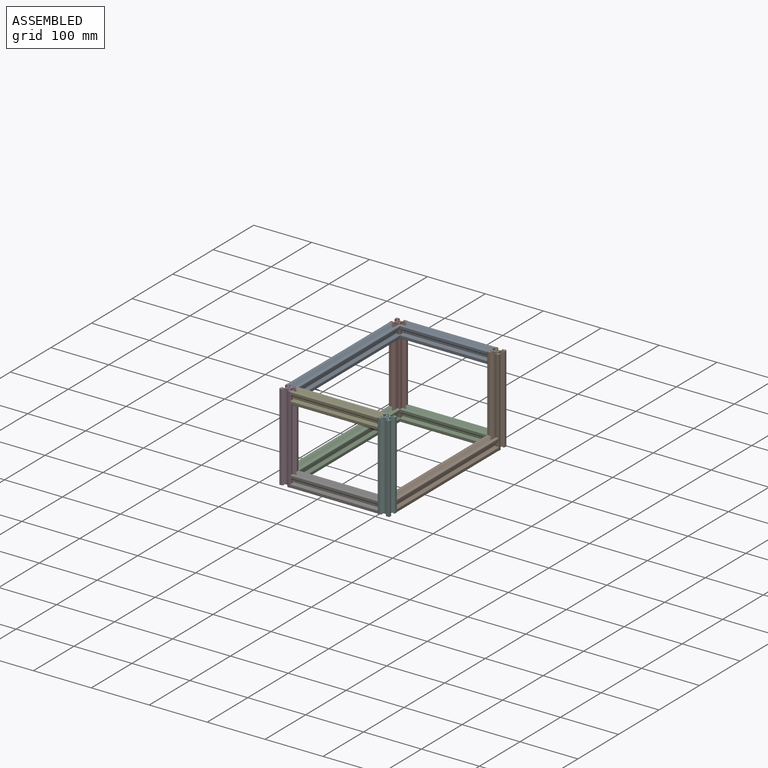
[diagram: assembled view]
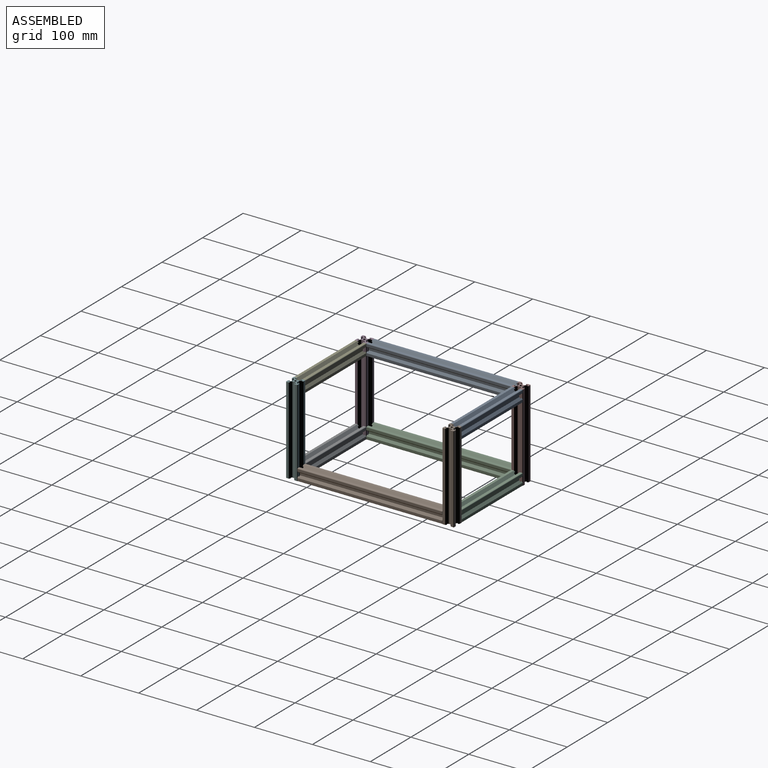
[diagram: assembled view, second angle]
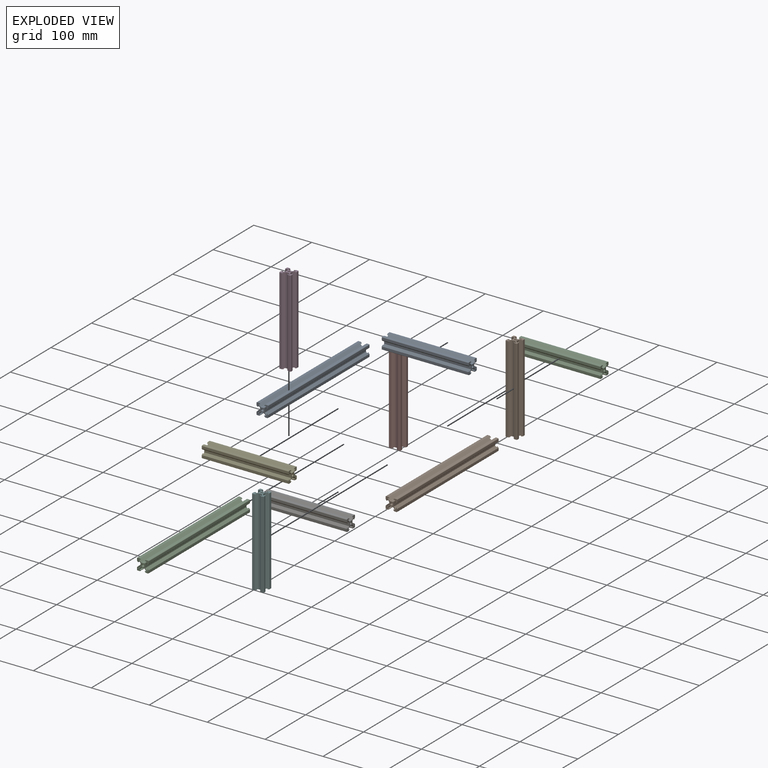
[diagram: exploded view]
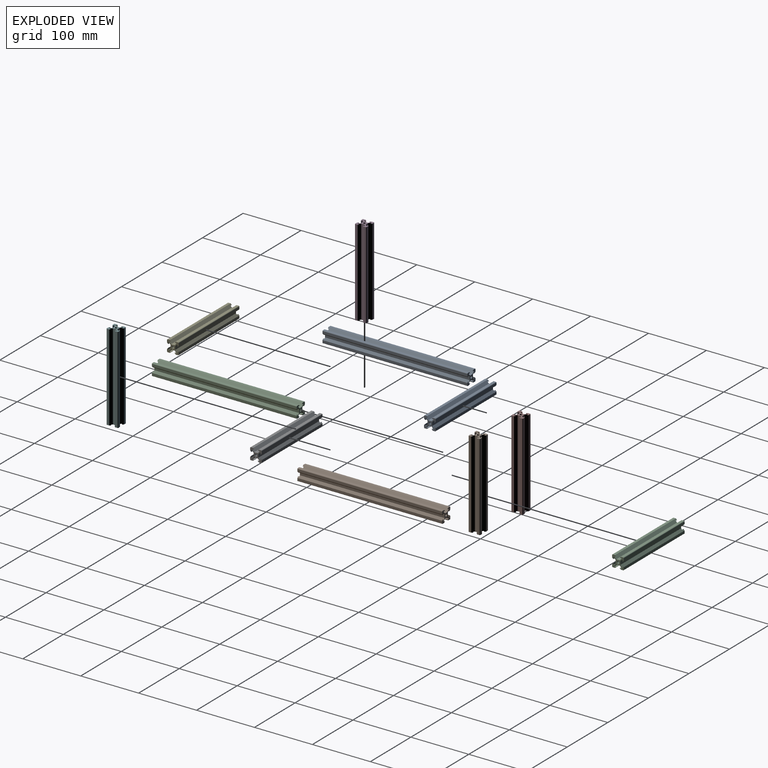
[diagram: exploded view, second angle]
FCSTD DOCUMENT  (FreeCAD 1.0R39285 (Git))
Label: assembly-frame
License: All rights reserved
objects: App::Link×11, App::FeaturePython×11, Part::Feature×2, Assembly::JointGroup×1, Assembly::AssemblyObject×1
note: 2 computed .brp shape members not serialized (recipe doc carries the construction recipe); baked Part::Feature solids carry a one-line shape summary decoded from their .brp

FEATURE [Part::Feature] Part__Feature  label="2020_150mm v2"
  shape: bbox 20 x 20 x 150 mm, 51 faces (baked)
FEATURE [App::Link] _020_150mm_v2  label="2020_150mm_001"
  LinkedObject = -> Part__Feature
FEATURE [App::Link] _020_150mm_v003  label="2020_150mm_002"
  LinkPlacement = pos=(160,1.8e-15,140) rot=(0,-1,0;1.5708rad)
  LinkedObject = -> Part__Feature
  Placement = pos=(160,1.8e-15,140) rot=(0,-1,0;1.5708rad)
FEATURE [App::FeaturePython] GroundedJoint  # Assembly grounded joint (typed FeaturePython)
  ObjectToGround = -> _020_150mm_v2
FEATURE [App::FeaturePython] Joint  label="Fixed"  # Assembly joint (typed FeaturePython)
  Activated = true
  AngleMax = 0
  AngleMin = 0
  Detach1 = false
  Detach2 = false
  Distance = 0
  Distance2 = 0
  EnableAngleMax = false
  EnableAngleMin = false
  EnableLengthMax = false
  EnableLengthMin = false
  JointType = 0 (Fixed)
  LengthMax = 0
  LengthMin = 0
  Offset2 = pos=(0,0,0) rot=(0,0,1;1.5708rad)
  Placement1 = pos=(10,-7,150) rot=(-0.57735,-0.57735,0.57735;4.18879rad)
  Placement2 = pos=(10,-7,150) rot=(-1,0,0;4.71239rad)
  Reference1 = -> Assembly [_020_150mm_v003.Edge4,_020_150mm_v003.Edge4]
  Reference2 = -> Assembly [_020_150mm_v2.Edge4,_020_150mm_v2.Edge4]
FEATURE [App::Link] _020_150mm_v004  label="2020_150mm_003"
  LinkPlacement = pos=(170,3.64e-14,-2.49e-14) rot=(0,0,1;0rad)
  LinkedObject = -> Part__Feature
  Placement = pos=(170,3.64e-14,-2.49e-14) rot=(0,0,1;0rad)
FEATURE [App::FeaturePython] Joint001  label="Fixed001"  # Assembly joint (typed FeaturePython)
  Activated = true
  AngleMax = 0
  AngleMin = 0
  Detach1 = false
  Detach2 = false
  Distance = 0
  Distance2 = 0
  EnableAngleMax = false
  EnableAngleMin = false
  EnableLengthMax = false
  EnableLengthMin = false
  JointType = 0 (Fixed)
  LengthMax = 0
  LengthMin = 0
  Offset2 = pos=(0,0,0) rot=(0,0,1;1.5708rad)
  Placement1 = pos=(-10,-7,150) rot=(0.57735,0.57735,0.57735;4.18879rad)
  Placement2 = pos=(10,-7,0) rot=(-1,0,0;4.71239rad)
  Reference1 = -> Assembly [_020_150mm_v004.Edge38,_020_150mm_v004.Edge38]
  Reference2 = -> Assembly [_020_150mm_v003.Edge92,_020_150mm_v003.Edge92]
FEATURE [App::Link] _020_150mm_v005  label="2020_150mm_004"
  LinkPlacement = pos=(160,2.7e-15,10) rot=(0,1,0;4.71239rad)
  LinkedObject = -> Part__Feature
  Placement = pos=(160,2.7e-15,10) rot=(0,1,0;4.71239rad)
FEATURE [App::FeaturePython] Joint002  label="Fixed002"  # Assembly joint (typed FeaturePython)
  Activated = true
  AngleMax = 0
  AngleMin = 0
  Detach1 = false
  Detach2 = false
  Distance = 0
  Distance2 = 0
  EnableAngleMax = false
  EnableAngleMin = false
  EnableLengthMax = false
  EnableLengthMin = false
  JointType = 0 (Fixed)
  LengthMax = 0
  LengthMin = 0
  Offset2 = pos=(0,0,0) rot=(0,0,-1;1.5708rad)
  Placement1 = pos=(-10,-7,150) rot=(0.57735,0.57735,0.57735;4.18879rad)
  Placement2 = pos=(10,-7,0) rot=(0,-0.707107,0.707107;3.14159rad)
  Reference1 = -> Assembly [_020_150mm_v005.Edge38,_020_150mm_v005.Edge38]
  Reference2 = -> Assembly [_020_150mm_v2.Edge92,_020_150mm_v2.Edge92]
FEATURE [Part::Feature] Part__Feature001  label="2020_250mm v2"
  shape: bbox 20 x 20 x 250 mm, 51 faces (baked)
FEATURE [App::Link] _020_250mm_v2  label="2020_250mm_001"
  LinkPlacement = pos=(-1.101e-13,-260,10) rot=(-1,0,0;1.5708rad)
  LinkedObject = -> Part__Feature001
  Placement = pos=(-1.101e-13,-260,10) rot=(-1,0,0;1.5708rad)
FEATURE [App::FeaturePython] Joint003  label="Fixed003"  # Assembly joint (typed FeaturePython)
  Activated = true
  AngleMax = 0
  AngleMin = 0
  Detach1 = false
  Detach2 = false
  Distance = 0
  Distance2 = 0
  EnableAngleMax = false
  EnableAngleMin = false
  EnableLengthMax = false
  EnableLengthMin = false
  JointType = 0 (Fixed)
  LengthMax = 0
  LengthMin = 0
  Offset2 = pos=(0,0,-2) rot=(0,0,1;1.5708rad)
  Placement1 = pos=(9,10,250) rot=(-0.707107,0,0.707107;3.14159rad)
  Placement2 = pos=(9,-10,0) rot=(-0.57735,0.57735,0.57735;4.18879rad)
  Reference1 = -> Assembly [_020_250mm_v2.Edge16,_020_250mm_v2.Vertex16]
  Reference2 = -> Assembly [_020_150mm_v2.Edge96,_020_150mm_v2.Edge96]
FEATURE [App::Link] _020_250mm_v003  label="2020_250mm_002"
  LinkPlacement = pos=(1.11e-13,-260,140) rot=(1,0,0;4.71239rad)
  LinkedObject = -> Part__Feature001
  Placement = pos=(1.11e-13,-260,140) rot=(1,0,0;4.71239rad)
FEATURE [App::Link] _020_250mm_v004  label="2020_250mm_003"
  LinkPlacement = pos=(170,-260,10) rot=(-1,0,0;1.5708rad)
  LinkedObject = -> Part__Feature001
  Placement = pos=(170,-260,10) rot=(-1,0,0;1.5708rad)
FEATURE [App::FeaturePython] Joint005  label="Fixed005"  # Assembly joint (typed FeaturePython)
  Activated = true
  AngleMax = 0
  AngleMin = 0
  Detach1 = false
  Detach2 = false
  Distance = 0
  Distance2 = 0
  EnableAngleMax = false
  EnableAngleMin = false
  EnableLengthMax = false
  EnableLengthMin = false
  JointType = 0 (Fixed)
  LengthMax = 0
  LengthMin = 0
  Offset2 = pos=(0,0,0) rot=(0,0,1;1.5708rad)
  Placement1 = pos=(-7,10,250) rot=(-0.707107,0,0.707107;3.14159rad)
  Placement2 = pos=(-7,-10,0) rot=(-0.57735,0.57735,0.57735;4.18879rad)
  Reference1 = -> Assembly [_020_250mm_v004.Edge26,_020_250mm_v004.Edge26]
  Reference2 = -> Assembly [_020_150mm_v004.Edge107,_020_150mm_v004.Edge107]
FEATURE [App::Link] _020_150mm_v006  label="2020_150mm_005"
  LinkPlacement = pos=(1.814e-13,-270,7.13e-14) rot=(0,0,1;0rad)
  LinkedObject = -> Part__Feature
  Placement = pos=(1.814e-13,-270,7.13e-14) rot=(0,0,1;0rad)
FEATURE [App::FeaturePython] Joint006  label="Fixed006"  # Assembly joint (typed FeaturePython)
  Activated = true
  AngleMax = 0
  AngleMin = 0
  Detach1 = false
  Detach2 = false
  Distance = 0
  Distance2 = 0
  EnableAngleMax = false
  EnableAngleMin = false
  EnableLengthMax = false
  EnableLengthMin = false
  JointType = 0 (Fixed)
  LengthMax = 0
  LengthMin = 0
  Offset2 = pos=(0,0,0) rot=(0,0,1;1.5708rad)
  Placement1 = pos=(-7,10,150) rot=(0.707107,0,0.707107;3.14159rad)
  Placement2 = pos=(-7,-10,0) rot=(-0.57735,0.57735,0.57735;4.18879rad)
  Reference1 = -> Assembly [_020_150mm_v006.Edge26,_020_150mm_v006.Edge26]
  Reference2 = -> Assembly [_020_250mm_v003.Edge63,_020_250mm_v003.Edge63]
FEATURE [App::Link] _020_150mm_v007  label="2020_150mm_006"
  LinkPlacement = pos=(10,-270,140) rot=(0,1,0;1.5708rad)
  LinkedObject = -> Part__Feature
  Placement = pos=(10,-270,140) rot=(0,1,0;1.5708rad)
FEATURE [App::Link] _020_150mm_v008  label="2020_150mm_007"
  LinkPlacement = pos=(170,-270,150) rot=(1,0,0;3.14159rad)
  LinkedObject = -> Part__Feature
  Placement = pos=(170,-270,150) rot=(1,0,0;3.14159rad)
FEATURE [App::Link] _020_150mm_v009  label="2020_150mm_008"
  LinkPlacement = pos=(10,-270,10) rot=(0,1,0;1.5708rad)
  LinkedObject = -> Part__Feature
  Placement = pos=(10,-270,10) rot=(0,1,0;1.5708rad)
FEATURE [App::FeaturePython] Joint010  label="Fixed010"  # Assembly joint (typed FeaturePython)
  Activated = true
  AngleMax = 0
  AngleMin = 0
  Detach1 = false
  Detach2 = false
  Distance = 0
  Distance2 = 0
  EnableAngleMax = false
  EnableAngleMin = false
  EnableLengthMax = false
  EnableLengthMin = false
  JointType = 0 (Fixed)
  LengthMax = 0
  LengthMin = 0
  Offset2 = pos=(0,0,0) rot=(0,0,-1;1.5708rad)
  Placement1 = pos=(7,-10,250) rot=(0.707107,0,0.707107;3.14159rad)
  Placement2 = pos=(7,-10,150) rot=(-0.57735,-0.57735,0.57735;2.0944rad)
  Reference1 = -> Assembly [_020_250mm_v003.Edge2,_020_250mm_v003.Edge2]
  Reference2 = -> Assembly [_020_150mm_v2.Edge2,_020_150mm_v2.Edge2]
FEATURE [App::FeaturePython] Joint011  label="Fixed011"  # Assembly joint (typed FeaturePython)
  Activated = true
  AngleMax = 0
  AngleMin = 0
  Detach1 = false
  Detach2 = false
  Distance = 0
  Distance2 = 0
  EnableAngleMax = false
  EnableAngleMin = false
  EnableLengthMax = false
  EnableLengthMin = false
  JointType = 0 (Fixed)
  LengthMax = 0
  LengthMin = 0
  Offset2 = pos=(0,0,0) rot=(0,0,1;1.5708rad)
  Placement1 = pos=(-10,7,1.8e-15) rot=(0.57735,0.57735,0.57735;4.18879rad)
  Placement2 = pos=(10,7,150) rot=(-1,0,0;4.71239rad)
  Reference1 = -> Assembly [_020_150mm_v007.Edge119,_020_150mm_v007.Edge119]
  Reference2 = -> Assembly [_020_150mm_v006.Edge14,_020_150mm_v006.Edge14]
FEATURE [App::FeaturePython] Joint012  label="Fixed012"  # Assembly joint (typed FeaturePython)
  Activated = true
  AngleMax = 0
  AngleMin = 0
  Detach1 = false
  Detach2 = false
  Distance = 0
  Distance2 = 0
  EnableAngleMax = false
  EnableAngleMin = false
  EnableLengthMax = false
  EnableLengthMin = false
  JointType = 0 (Fixed)
  LengthMax = 0
  LengthMin = 0
  Offset2 = pos=(0,0,0) rot=(0,0,1;1.5708rad)
  Placement1 = pos=(-10,-7,0) rot=(0.57735,0.57735,0.57735;4.18879rad)
  Placement2 = pos=(-10,7,150) rot=(1,0,0;4.71239rad)
  Reference1 = -> Assembly [_020_150mm_v008.Edge109,_020_150mm_v008.Edge109]
  Reference2 = -> Assembly [_020_150mm_v007.Edge28,_020_150mm_v007.Edge28]
FEATURE [App::FeaturePython] Joint013  label="Fixed013"  # Assembly joint (typed FeaturePython)
  Activated = true
  AngleMax = 0
  AngleMin = 0
  Detach1 = false
  Detach2 = false
  Distance = 0
  Distance2 = 0
  EnableAngleMax = false
  EnableAngleMin = false
  EnableLengthMax = false
  EnableLengthMin = false
  JointType = 0 (Fixed)
  LengthMax = 0
  LengthMin = 0
  Offset2 = pos=(0,0,0) rot=(0,0,-1;1.5708rad)
  Placement1 = pos=(10,-7,-1.8e-15) rot=(-0.57735,-0.57735,0.57735;4.18879rad)
  Placement2 = pos=(10,-7,0) rot=(0,-0.707107,0.707107;3.14159rad)
  Reference1 = -> Assembly [_020_150mm_v009.Edge92,_020_150mm_v009.Edge92]
  Reference2 = -> Assembly [_020_150mm_v006.Edge92,_020_150mm_v006.Edge92]
FEATURE [Assembly::JointGroup] Joints
  Group = -> [GroundedJoint,Joint,Joint001,Joint002,Joint003,Joint005,Joint006,Joint010,Joint011,Joint012,Joint013]
FEATURE [Assembly::AssemblyObject] Assembly  label="frame"
  Group = -> [Joints,_020_150mm_v2,_020_150mm_v003,GroundedJoint,Joint,_020_150mm_v004,Joint001,_020_150mm_v005,Joint002,_020_250mm_v2,Joint003,_020_250mm_v003,_020_250mm_v004,Joint005,_020_150mm_v006,Joint006,_020_150mm_v007,_020_150mm_v008,_020_150mm_v009,Joint010,Joint011,Joint012,Joint013]
  Origin = -> Origin
  Type = Assembly
